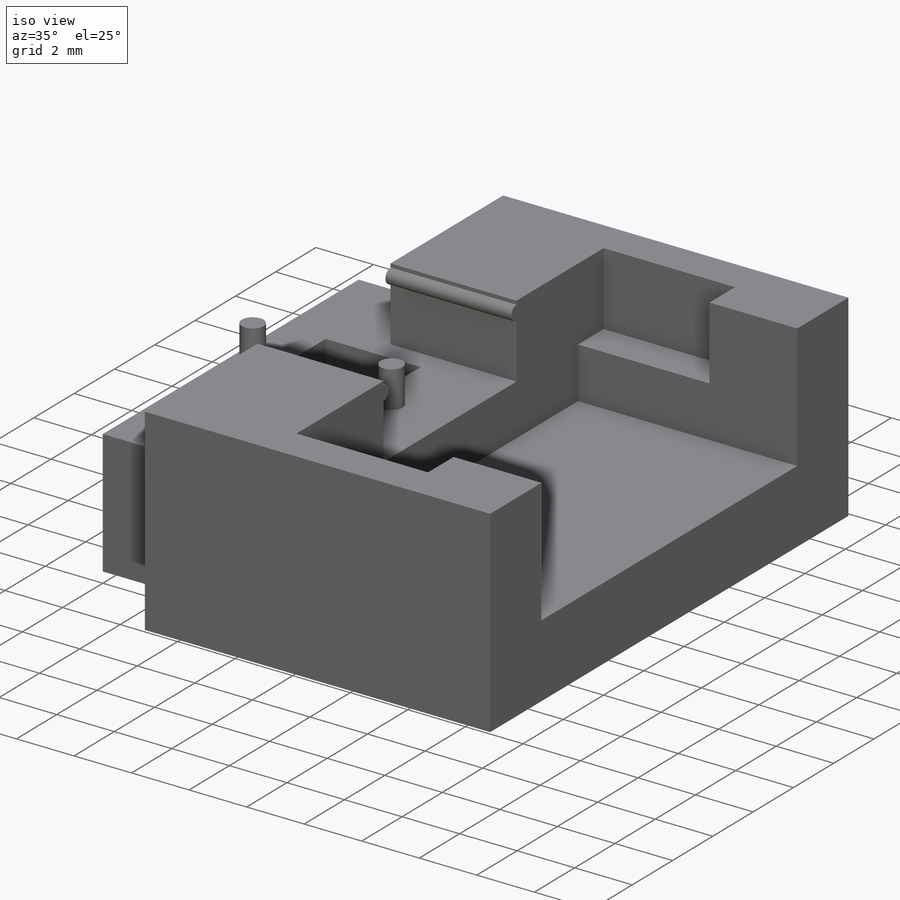
[diagram: iso view]
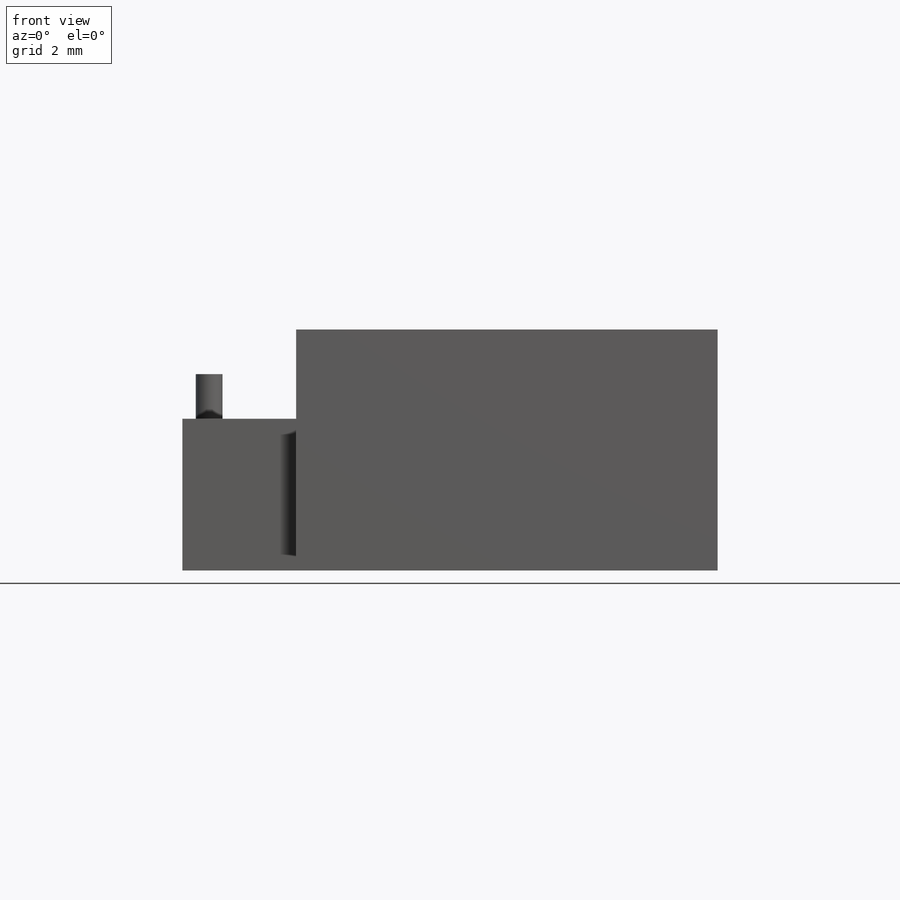
[diagram: front view]
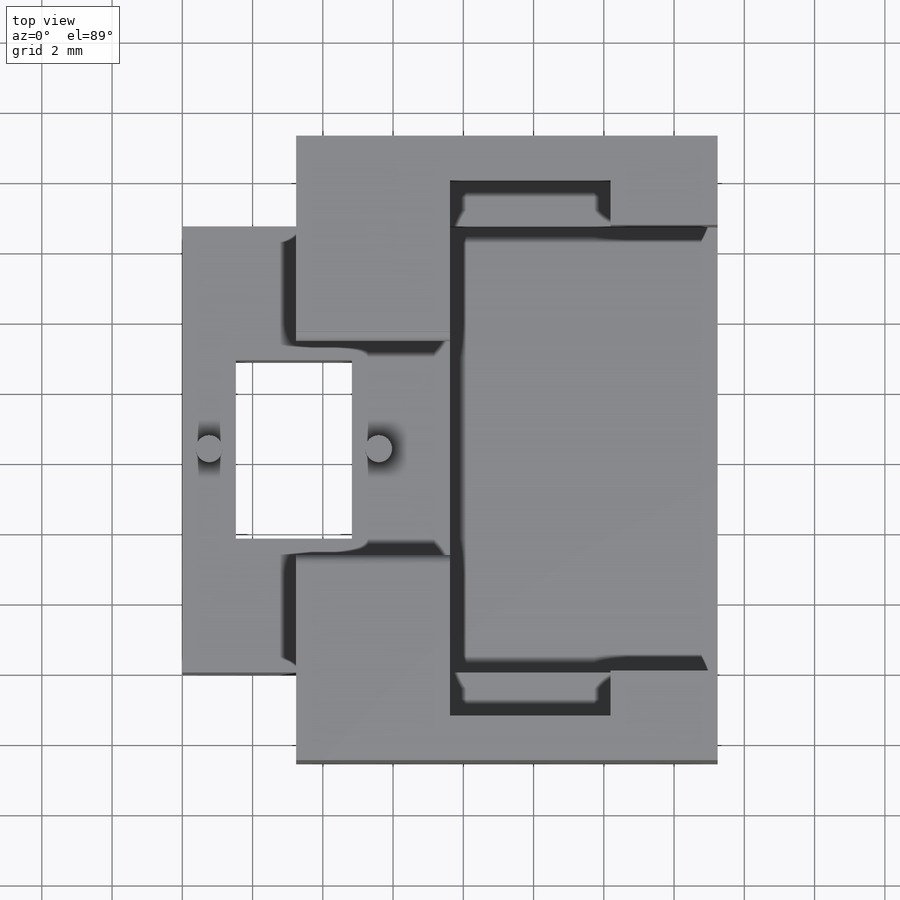
[diagram: top view]
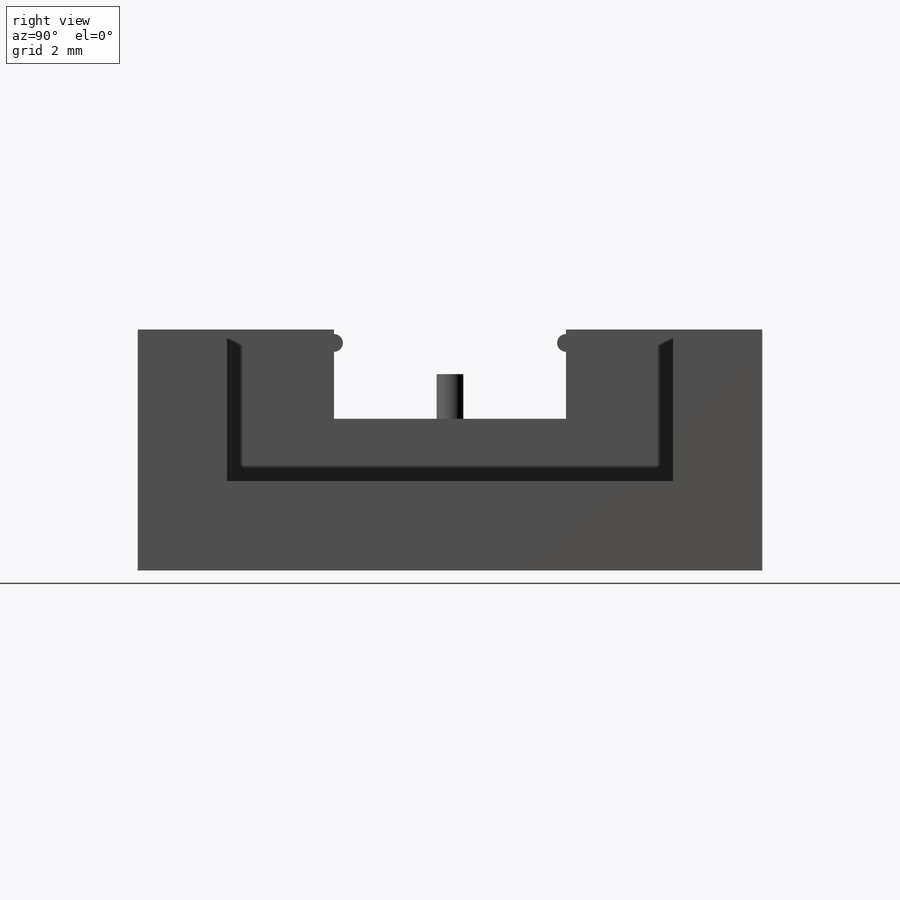
[diagram: right view]
SOLIDWORKS PART (.sldprt)
format: sldprt  version: not decoded by parser v0  size: 325,632 bytes
history: native  units: mm
features: sketch x11, extrude x7, cut_extrude x4, material x1 (+11 scaffold rows collapsed)
feature tree (34):
  scaffold x11  (default folders/planes/origin — collapsed)
  material  "Material <not specified>"
  sketch  "Sketch1"  dims[D1=12.7mm]
  extrude  "Main Base"  Depth=2.54mm
  sketch  "Sketch2"  dims[D1=0.635mm]
  extrude  "AlignmentPins"  Depth=1.27mm
  sketch  "Sketch7"
  extrude  "PCBoardEdges"  Depth=1.778mm
  sketch  "Sketch12"  dims[D1=6.604mm]
  extrude  "ConnectorAlign"  Depth=2.54mm
  sketch  "Sketch13"  dims[c1.D1=2.032mm c1.D2=5.08mm c2.D1=0.762mm c2.D2=3.302mm]
  cut_extrude  "LEDHole"  [1 undecoded]
  sketch  "Sketch14"
  extrude  "Shoulder"  Depth=2.54mm
  sketch  "Sketch15"
  extrude  "Shoulder2"  Depth=2.54mm
  sketch  "Sketch17"  dims[D1=0.381mm]
  extrude  "PCB_Clip"  [1 undecoded]
  sketch  "Sketch18"  dims[D1=3.048mm D2=3.81mm]
  cut_extrude  "NunchuckClip"  Depth=1.27mm
  sketch  "Sketch19"  dims[D1=3.048mm D2=3.81mm]
  cut_extrude  "NunchuckClip2"  Depth=1.27mm
  sketch  "Sketch20"
  cut_extrude  "Cut-Extrude1"  Depth=0.508mm
decode coverage: 16 of 22 modeling features carry decoded parameters
note: 2 parameter values undecoded
note: suppression state not decoded; provenance and decode notes live in map.json
